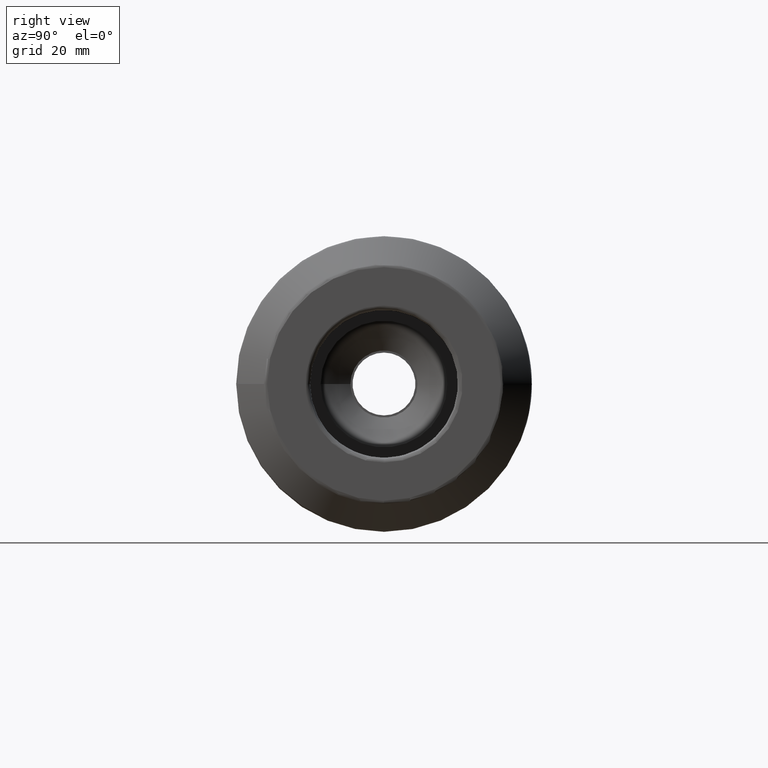
[diagram: clean part render]
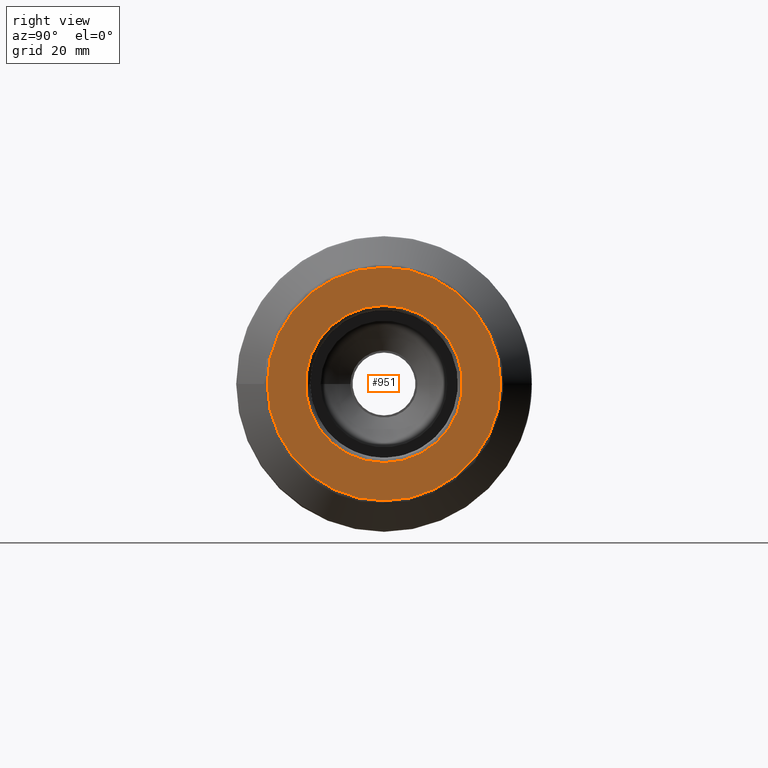
[diagram: same view with one face highlighted and labeled with its STEP entity id]
A machine part, right view. The second image highlights one B-rep face of the part: STEP entity #951.
In plain terms, the highlighted planar face has unit normal (1, 0, 0).
Its self-contained STEP definition (entity closure, byte-faithful):
#34=FACE_BOUND('',#220,.T.);
#42=PLANE('',#1053);
#75=CIRCLE('',#1051,16.875);
#77=CIRCLE('',#1054,25.0857864376269);
#157=FACE_OUTER_BOUND('',#219,.T.);
#219=EDGE_LOOP('',(#683));
#220=EDGE_LOOP('',(#684));
#406=VERTEX_POINT('',#1604);
#407=VERTEX_POINT('',#1608);
#510=EDGE_CURVE('',#406,#406,#75,.T.);
#512=EDGE_CURVE('',#407,#407,#77,.T.);
#683=ORIENTED_EDGE('',*,*,#512,.F.);
#684=ORIENTED_EDGE('',*,*,#510,.T.);
#951=ADVANCED_FACE('',(#157,#34),#42,.T.);
#1051=AXIS2_PLACEMENT_3D('',#1605,#1224,#1225);
#1053=AXIS2_PLACEMENT_3D('',#1607,#1228,#1229);
#1054=AXIS2_PLACEMENT_3D('',#1609,#1230,#1231);
#1224=DIRECTION('center_axis',(-1.,0.,0.));
#1225=DIRECTION('ref_axis',(0.,0.,1.));
#1228=DIRECTION('center_axis',(1.,0.,0.));
#1229=DIRECTION('ref_axis',(0.,0.,-1.));
#1230=DIRECTION('center_axis',(-1.,0.,0.));
#1231=DIRECTION('ref_axis',(0.,0.,1.));
#1604=CARTESIAN_POINT('',(63.4999999999996,-2.06659147356115E-15,-16.875));
#1605=CARTESIAN_POINT('Origin',(63.4999999999996,0.,0.));
#1607=CARTESIAN_POINT('Origin',(63.4999999999996,25.0857864376269,0.));
#1608=CARTESIAN_POINT('',(63.4999999999996,-3.07212280649339E-15,-25.0857864376269));
#1609=CARTESIAN_POINT('Origin',(63.4999999999996,0.,0.));